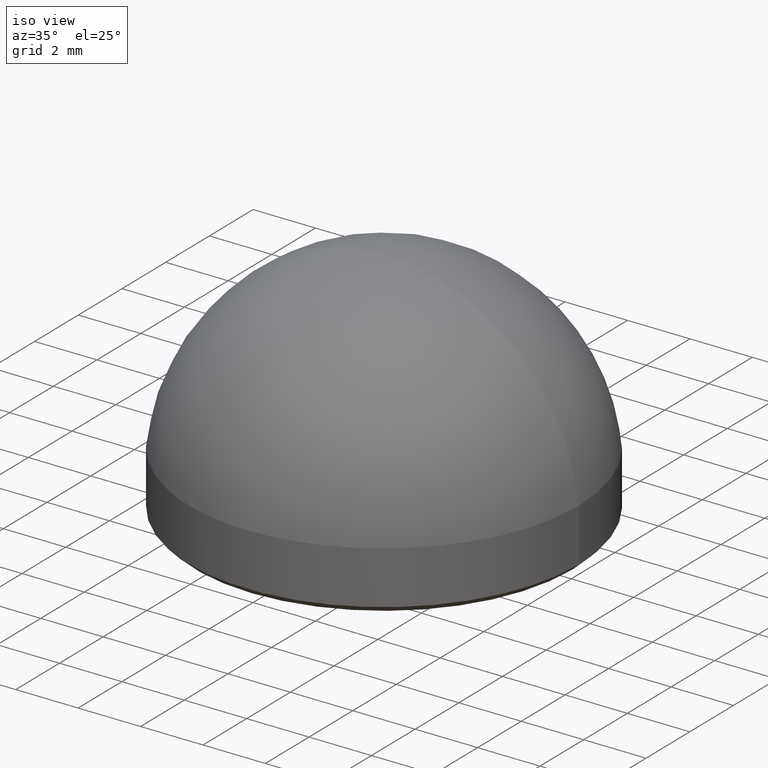
[diagram: clean part render]
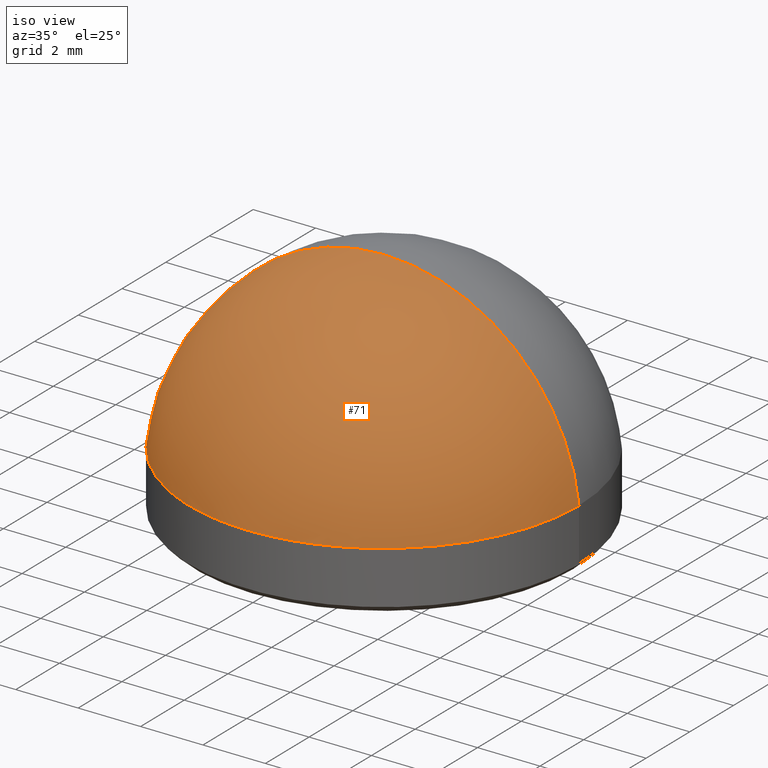
[diagram: same view with one face highlighted and labeled with its STEP entity id]
A machine part, iso view. The second image highlights one B-rep face of the part: STEP entity #71.
In plain terms, the highlighted spherical surface has radius 6.2877 mm.
Its self-contained STEP definition (entity closure, byte-faithful):
#6 = AXIS2_PLACEMENT_3D ( 'NONE', #45, #111, #176 ) ;
#12 = VERTEX_POINT ( 'NONE', #181 ) ;
#18 = ORIENTED_EDGE ( 'NONE', *, *, #193, .T. ) ;
#26 = DIRECTION ( 'NONE',  ( -1.224646799147353207E-16, -1.000000000000000000, -0.000000000000000000 ) ) ;
#27 = AXIS2_PLACEMENT_3D ( 'NONE', #105, #26, #89 ) ;
#33 = ORIENTED_EDGE ( 'NONE', *, *, #141, .T. ) ;
#45 = CARTESIAN_POINT ( 'NONE',  ( 0.000000000000000000, 0.000000000000000000, 1.212276785714286209 ) ) ;
#48 = AXIS2_PLACEMENT_3D ( 'NONE', #149, #81, #101 ) ;
#52 = EDGE_CURVE ( 'NONE', #64, #179, #96, .T. ) ;
#64 = VERTEX_POINT ( 'NONE', #93 ) ;
#70 = DIRECTION ( 'NONE',  ( -0.000000000000000000, -1.000000000000000000, 0.000000000000000000 ) ) ;
#71 = ADVANCED_FACE ( 'NONE', ( #173 ), #125, .T. ) ;
#81 = DIRECTION ( 'NONE',  ( 0.000000000000000000, 0.000000000000000000, 1.000000000000000000 ) ) ;
#88 = CIRCLE ( 'NONE', #48, 6.250000000000000000 ) ;
#89 = DIRECTION ( 'NONE',  ( 1.000000000000000000, -1.224646799147353454E-16, 0.000000000000000000 ) ) ;
#93 = CARTESIAN_POINT ( 'NONE',  ( -6.250000000000000000, 0.000000000000000000, 1.899999999999999911 ) ) ;
#96 = CIRCLE ( 'NONE', #6, 6.287723214285714235 ) ;
#101 = DIRECTION ( 'NONE',  ( 1.000000000000000000, 0.000000000000000000, 0.000000000000000000 ) ) ;
#105 = CARTESIAN_POINT ( 'NONE',  ( 0.000000000000000000, 0.000000000000000000, 1.212276785714286209 ) ) ;
#111 = DIRECTION ( 'NONE',  ( 0.000000000000000000, 1.000000000000000000, 0.000000000000000000 ) ) ;
#114 = EDGE_LOOP ( 'NONE', ( #18, #33, #197 ) ) ;
#115 = AXIS2_PLACEMENT_3D ( 'NONE', #122, #70, #140 ) ;
#119 = CIRCLE ( 'NONE', #27, 6.287723214285714235 ) ;
#122 = CARTESIAN_POINT ( 'NONE',  ( 0.000000000000000000, 0.000000000000000000, 1.212276785714286209 ) ) ;
#125 = SPHERICAL_SURFACE ( 'NONE', #115, 6.287723214285714235 ) ;
#140 = DIRECTION ( 'NONE',  ( -1.000000000000000000, 0.000000000000000000, 0.000000000000000000 ) ) ;
#141 = EDGE_CURVE ( 'NONE', #12, #179, #119, .T. ) ;
#149 = CARTESIAN_POINT ( 'NONE',  ( 0.000000000000000000, 0.000000000000000000, 1.899999999999999911 ) ) ;
#173 = FACE_OUTER_BOUND ( 'NONE', #114, .T. ) ;
#176 = DIRECTION ( 'NONE',  ( 0.000000000000000000, 0.000000000000000000, 1.000000000000000000 ) ) ;
#179 = VERTEX_POINT ( 'NONE', #212 ) ;
#181 = CARTESIAN_POINT ( 'NONE',  ( 6.250000000000000000, 7.654042494670955634E-16, 1.899999999999999911 ) ) ;
#193 = EDGE_CURVE ( 'NONE', #64, #12, #88, .T. ) ;
#197 = ORIENTED_EDGE ( 'NONE', *, *, #52, .F. ) ;
#212 = CARTESIAN_POINT ( 'NONE',  ( -3.850120054149754005E-16, 0.000000000000000000, 7.500000000000000888 ) ) ;